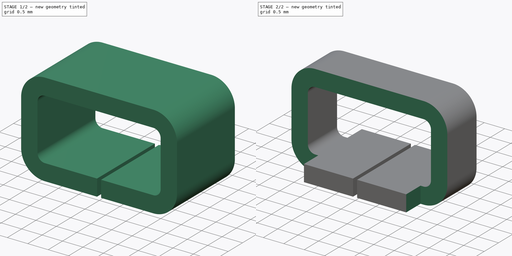
[diagram: build sequence overview — one tinted view per stage of 2, left to right]
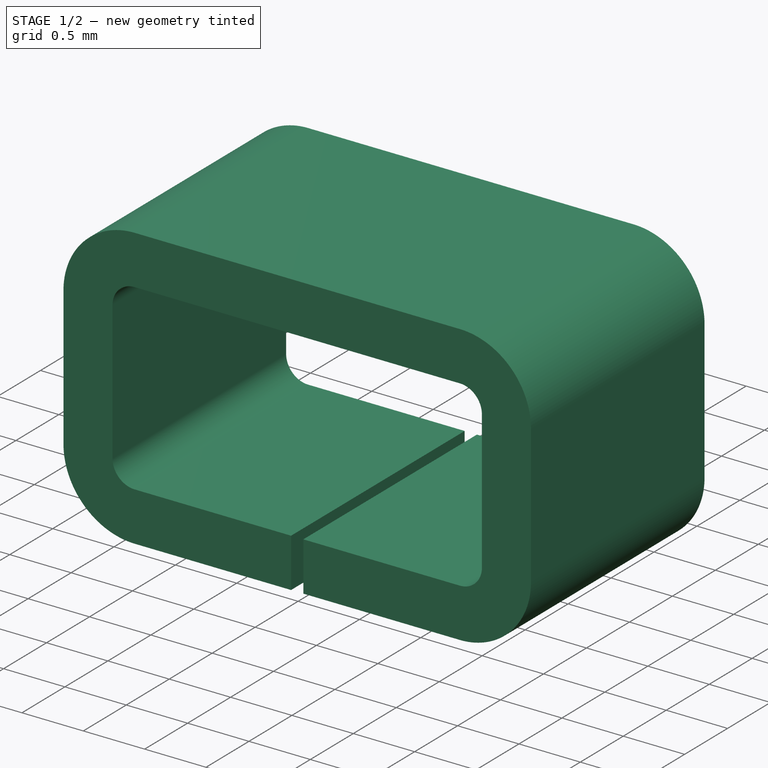
[diagram: stage 1 of 2 — iso view after this stage's code; geometry added in this stage tinted green]
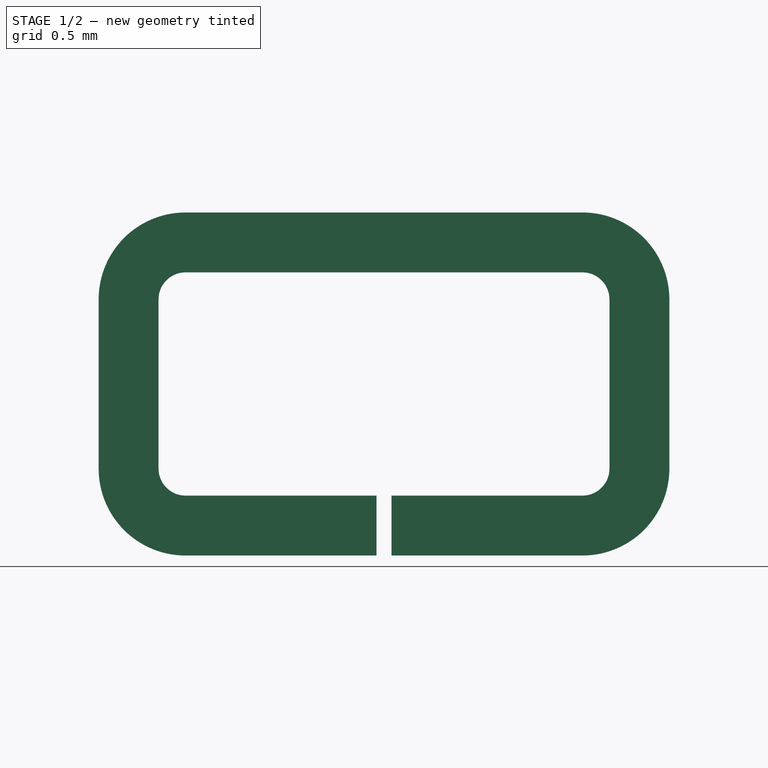
[diagram: stage 1 of 2 — front view after this stage's code; geometry added in this stage tinted green]
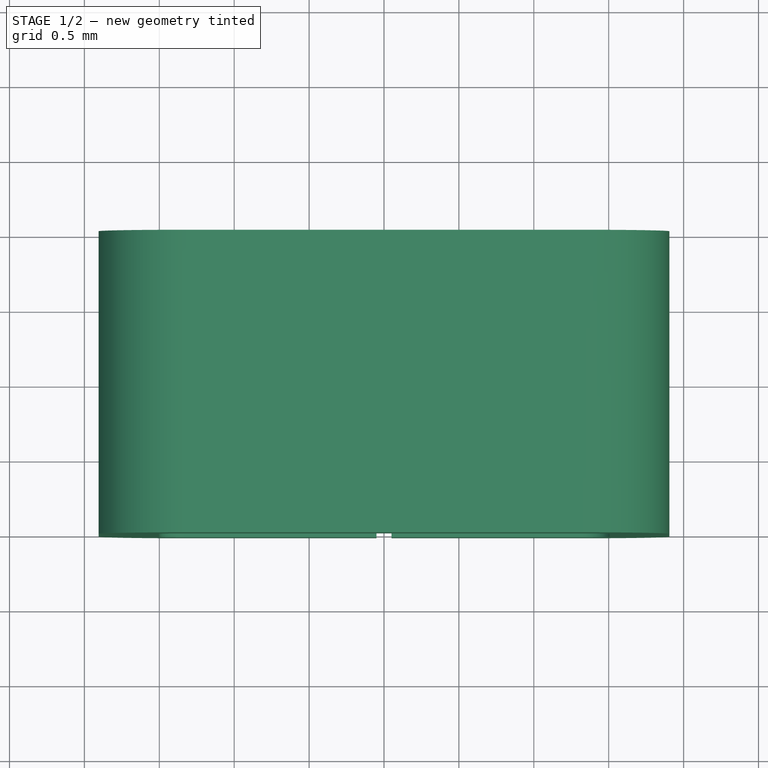
[diagram: stage 1 of 2 — top view after this stage's code; geometry added in this stage tinted green]
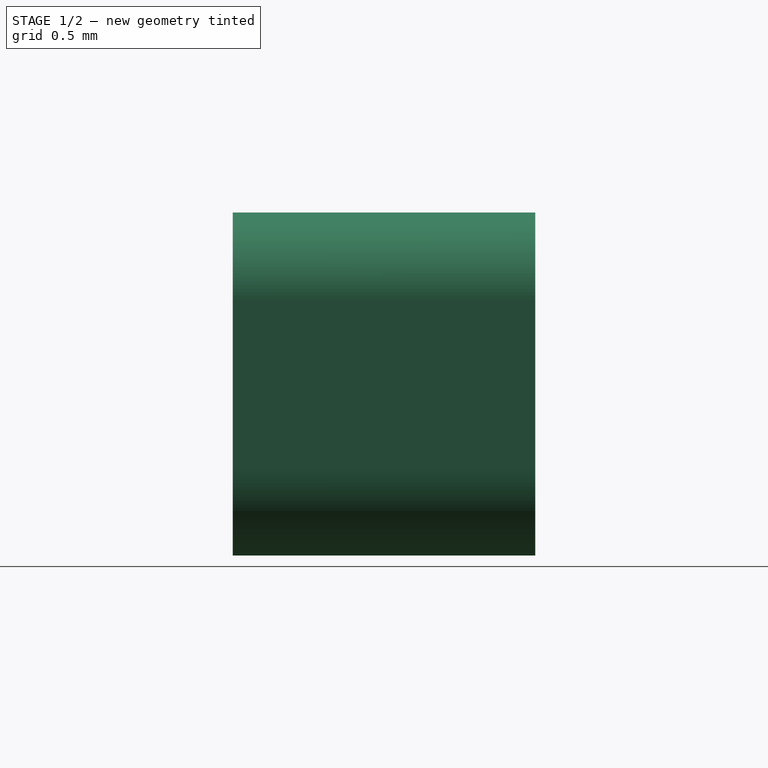
[diagram: stage 1 of 2 — right view after this stage's code; geometry added in this stage tinted green]
FCSTD DOCUMENT  (FreeCAD 0.18R16131 (Git))
Label: keystone-5029
License: All rights reserved
LicenseURL: http://en.wikipedia.org/wiki/All_rights_reserved
objects: Sketcher::SketchObject×2, PartDesign::Mirrored×2, PartDesign::Pad×1, PartDesign::Pocket×1, PartDesign::Body×1
note: 9 computed .brp shape members not serialized (recipe doc carries the construction recipe); baked Part::Feature solids carry a one-line shape summary decoded from their .brp

FEATURE [Sketcher::SketchObject] Sketch
  MapMode = 5
  Placement = pos=(0,0,0) rot=(1,0,0;1.5708rad)
  Support = -> [XZ_Plane]
  sketch-geometry (12):
    g0: LineSegment StartX=0.05 StartY=0 StartZ=0 EndX=1.325 EndY=0 EndZ=0
    g1: LineSegment StartX=1.905 StartY=0.58 StartZ=0 EndX=1.905 EndY=1.71 EndZ=0
    g2: LineSegment StartX=1.325 StartY=2.29 StartZ=0 EndX=0 EndY=2.29 EndZ=0
    g3: LineSegment StartX=0 StartY=2.29 StartZ=0 EndX=0 EndY=1.89 EndZ=0
    g4: LineSegment StartX=0 StartY=1.89 StartZ=0 EndX=1.325 EndY=1.89 EndZ=0
    g5: LineSegment StartX=1.505 StartY=1.71 StartZ=0 EndX=1.505 EndY=0.58 EndZ=0
    g6: LineSegment StartX=1.325 StartY=0.4 StartZ=0 EndX=0.05 EndY=0.4 EndZ=0
    g7: LineSegment StartX=0.05 StartY=0.4 StartZ=0 EndX=0.05 EndY=0 EndZ=0
    g8: ArcOfCircle CenterX=1.325 CenterY=1.71 CenterZ=0 NormalX=0 NormalY=0 NormalZ=1 AngleXU=0 Radius=0.18 StartAngle=0 EndAngle=1.5708
    g9: ArcOfCircle CenterX=1.325 CenterY=1.71 CenterZ=0 NormalX=0 NormalY=0 NormalZ=1 AngleXU=0 Radius=0.58 StartAngle=1e-16 EndAngle=1.5708
    g10: ArcOfCircle CenterX=1.325 CenterY=0.58 CenterZ=0 NormalX=0 NormalY=0 NormalZ=1 AngleXU=0 Radius=0.18 StartAngle=4.71239 EndAngle=6.28319
    g11: ArcOfCircle CenterX=1.325 CenterY=0.58 CenterZ=0 NormalX=0 NormalY=0 NormalZ=1 AngleXU=0 Radius=0.58 StartAngle=4.71239 EndAngle=6.28319
  constraints (30):
    c: Coincident(g2,g3)
    c: Coincident(g3,g4)
    c: Coincident(g6,g7)
    c: Coincident(g7,g0)
    c: PointOnObject(g0,g-1)
    c: Horizontal(g0)
    c: Horizontal(g6)
    c: Vertical(g7)
    c: Vertical(g3)
    c: Vertical(g1)
    c: Vertical(g5)
    c: Horizontal(g4)
    c: Horizontal(g2)
    c: DistanceX(g-2,g6) = 0.05
    c: DistanceY(g7,g7) = 0.4
    c: PointOnObject(g2,g-2)
    c: Tangent(g4,g8) = 1.5708
    c: Tangent(g5,g8) = 1.5708
    c: Tangent(g2,g9) = -1.5708
    c: Tangent(g1,g9) = -1.5708
    c: Tangent(g6,g10) = 1.5708
    c: Tangent(g5,g10) = 1.5708
    c: Tangent(g0,g11) = -1.5708
    c: Tangent(g1,g11) = -1.5708
    c: DistanceY(g-1,g2) = 2.29
    c: Distance(g-1,g1) = 1.905
    c: Coincident(g10,g11)
    c: Coincident(g8,g9)
    c: Vertical(g6,g4)
    c: Radius(g9) = 0.58
FEATURE [PartDesign::Pad] Pad
  Length = 2.02
  Length2 = 100
  Midplane = true
  Placement = pos=(0,0,0) rot=(1,0,0;1.5708rad)
  Profile = -> Sketch
  Type = 0
FEATURE [PartDesign::Mirrored] Mirrored
  BaseFeature = -> Pad
  MirrorPlane = -> Sketch [V_Axis]
  Originals = -> [Pad]
  Placement = pos=(0,0,0) rot=(1,0,0;1.5708rad)
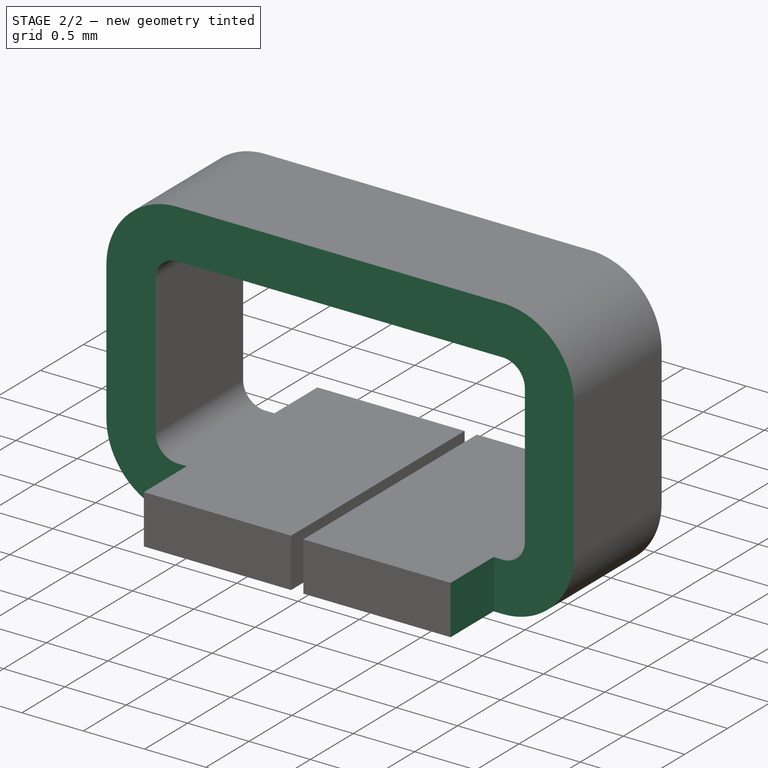
[diagram: stage 2 of 2 — iso view after this stage's code; geometry added in this stage tinted green]
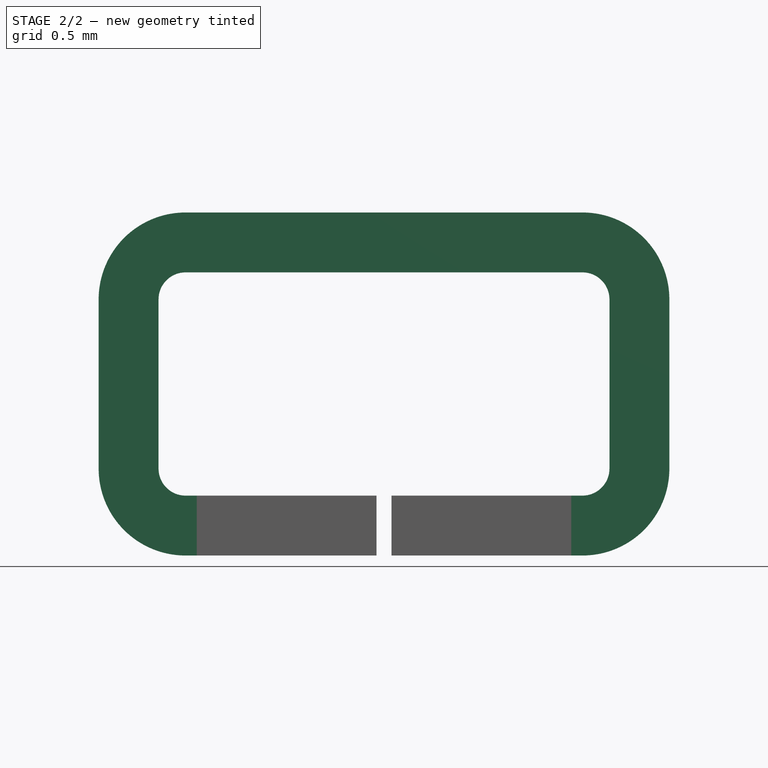
[diagram: stage 2 of 2 — front view after this stage's code; geometry added in this stage tinted green]
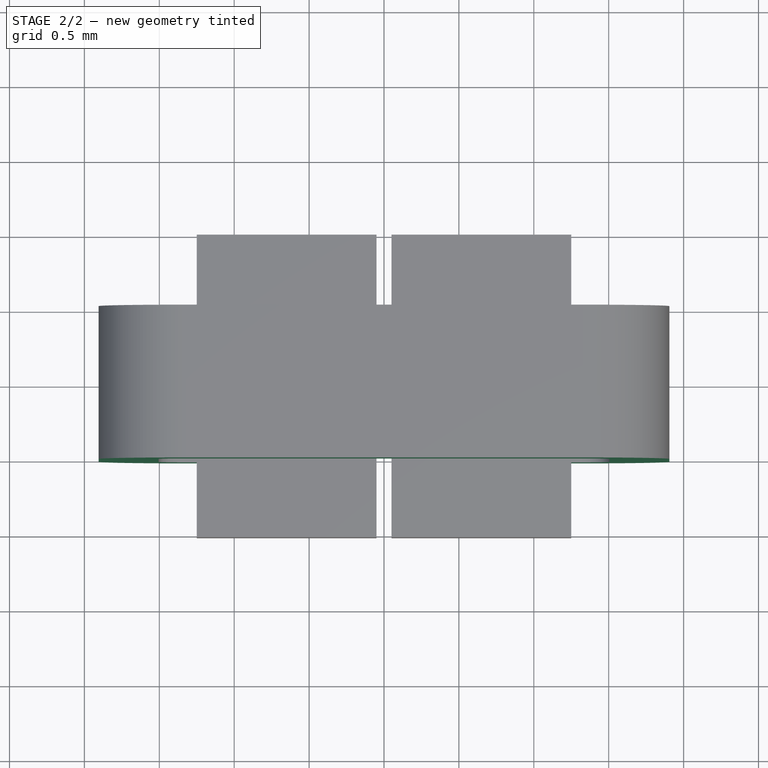
[diagram: stage 2 of 2 — top view after this stage's code; geometry added in this stage tinted green]
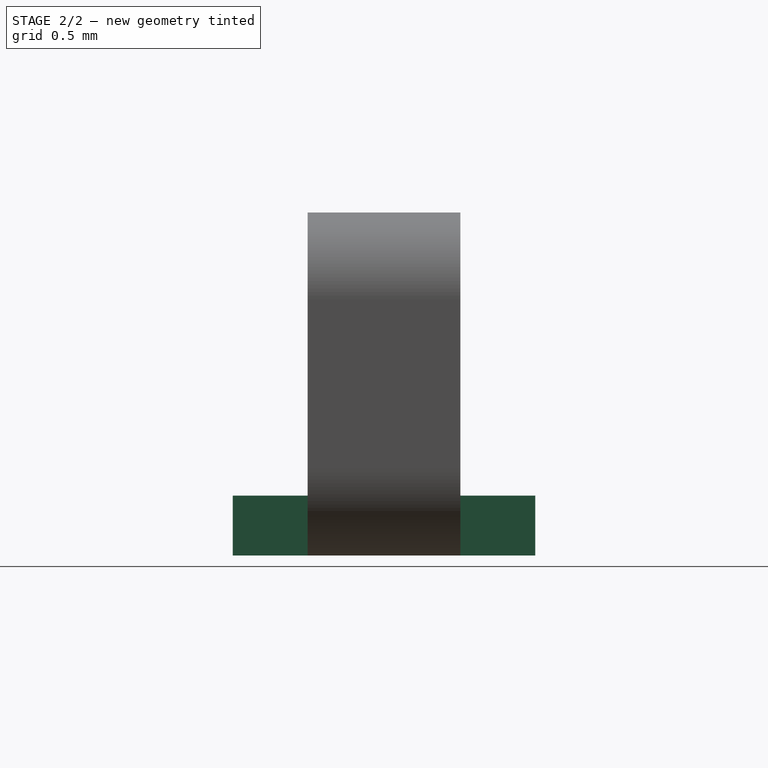
[diagram: stage 2 of 2 — right view after this stage's code; geometry added in this stage tinted green]
FEATURE [Sketcher::SketchObject] Sketch001
  MapMode = 5
  Placement = pos=(0,-1.01,7e-16) rot=(1,0,0;1.5708rad)
  Support = -> [Mirrored]
  sketch-geometry (8):
    g0: LineSegment StartX=1.25 StartY=-0.501321 StartZ=0 EndX=1.25 EndY=0.766681 EndZ=0
    g1: LineSegment StartX=1.25 StartY=0.766681 StartZ=0 EndX=-1.25 EndY=0.766681 EndZ=0
    g2: LineSegment StartX=-1.25 StartY=0.766681 StartZ=0 EndX=-1.25 EndY=-0.501321 EndZ=0
    g3: LineSegment StartX=-1.25 StartY=-0.501321 StartZ=0 EndX=-2.34865 EndY=-0.501321 EndZ=0
    g4: LineSegment StartX=-2.34865 StartY=-0.501321 StartZ=0 EndX=-2.34865 EndY=2.75847 EndZ=0
    g5: LineSegment StartX=-2.34865 StartY=2.75847 StartZ=0 EndX=2.34865 EndY=2.75847 EndZ=0
    g6: LineSegment StartX=2.34865 StartY=2.75847 StartZ=0 EndX=2.34865 EndY=-0.501321 EndZ=0
    g7: LineSegment StartX=2.34865 StartY=-0.501321 StartZ=0 EndX=1.25 EndY=-0.501321 EndZ=0
  constraints (18):
    c: Coincident(g0,g1)
    c: Coincident(g1,g2)
    c: Coincident(g2,g3)
    c: Coincident(g3,g4)
    c: Coincident(g4,g5)
    c: Coincident(g5,g6)
    c: Coincident(g6,g7)
    c: Coincident(g7,g0)
    c: Horizontal(g3)
    c: Horizontal(g7)
    c: Horizontal(g5)
    c: Vertical(g6)
    c: Vertical(g4)
    c: Vertical(g2)
    c: Vertical(g0)
    c: DistanceX(g-2,g0) = 1.25
    c: Symmetric(g1,g0,g-2)
    c: Symmetric(g6,g3,g-2)
FEATURE [PartDesign::Pocket] Pocket
  BaseFeature = -> Mirrored
  Length = 0.5
  Length2 = 100
  Placement = pos=(0,0,0) rot=(1,0,0;1.5708rad)
  Profile = -> Sketch001
  Type = 0
FEATURE [PartDesign::Mirrored] Mirrored001
  BaseFeature = -> Pocket
  MirrorPlane = -> XZ_Plane
  Originals = -> [Pocket]
  Placement = pos=(0,0,0) rot=(1,0,0;1.5708rad)
FEATURE [PartDesign::Body] Body
  Group = -> [Sketch,Pad,Mirrored,Sketch001,Pocket,Mirrored001]
  Origin = -> Origin
  Tip = -> Mirrored001
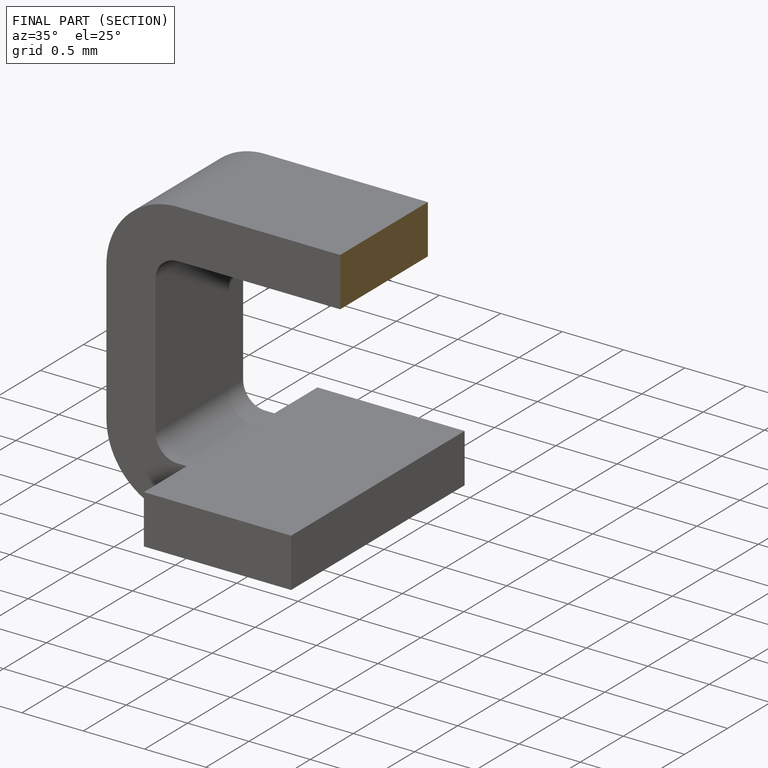
[diagram: finished part — half-section view (interior)]
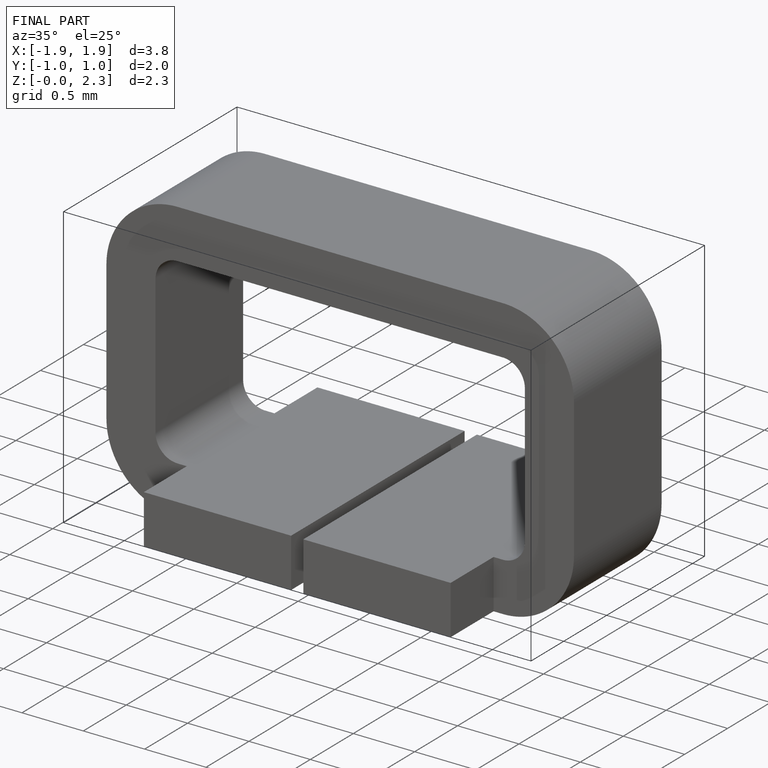
[diagram: finished part — iso view with bounding-box wireframe]
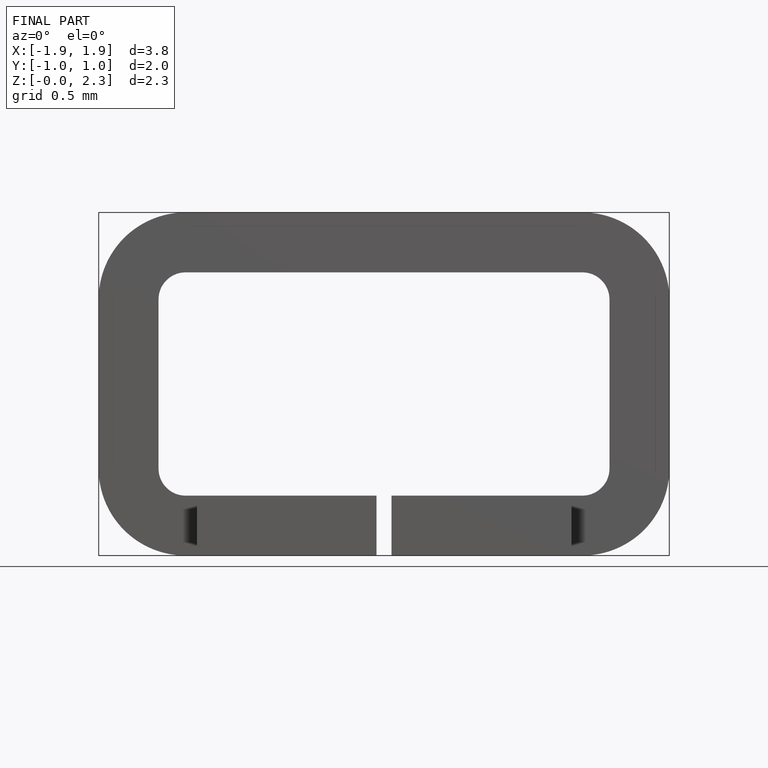
[diagram: finished part — front view with bounding-box wireframe]
